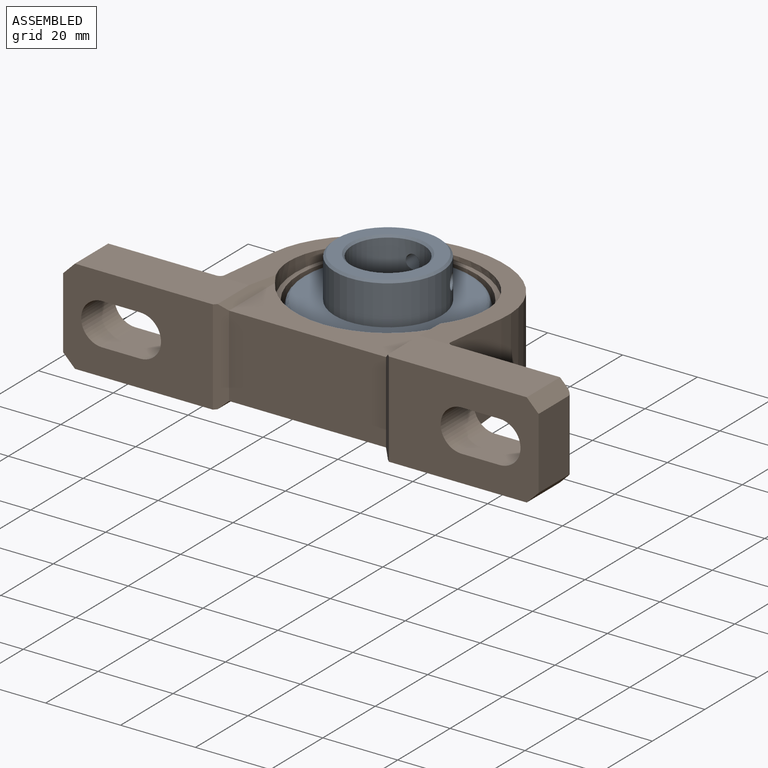
[diagram: assembled view]
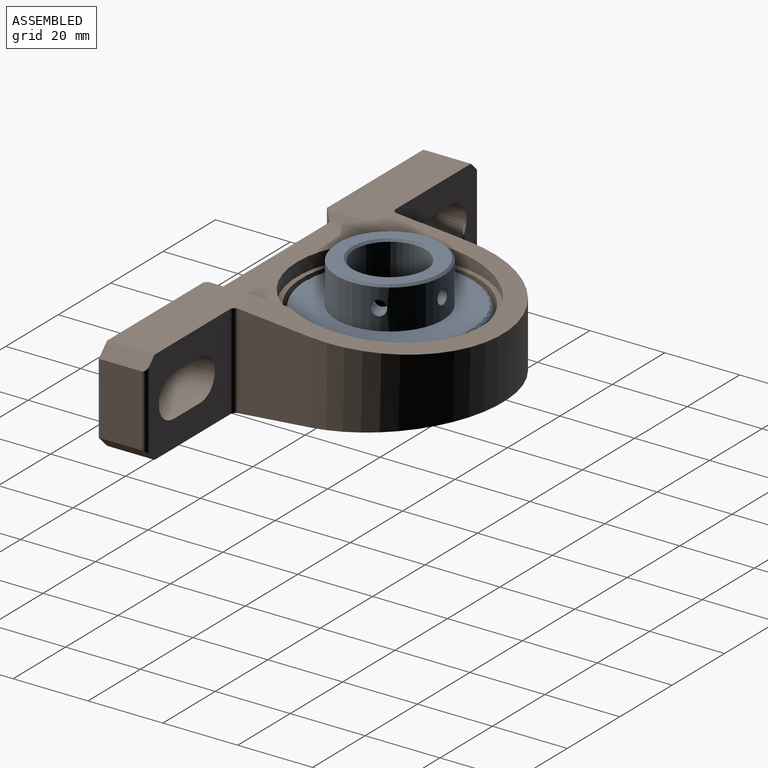
[diagram: assembled view, second angle]
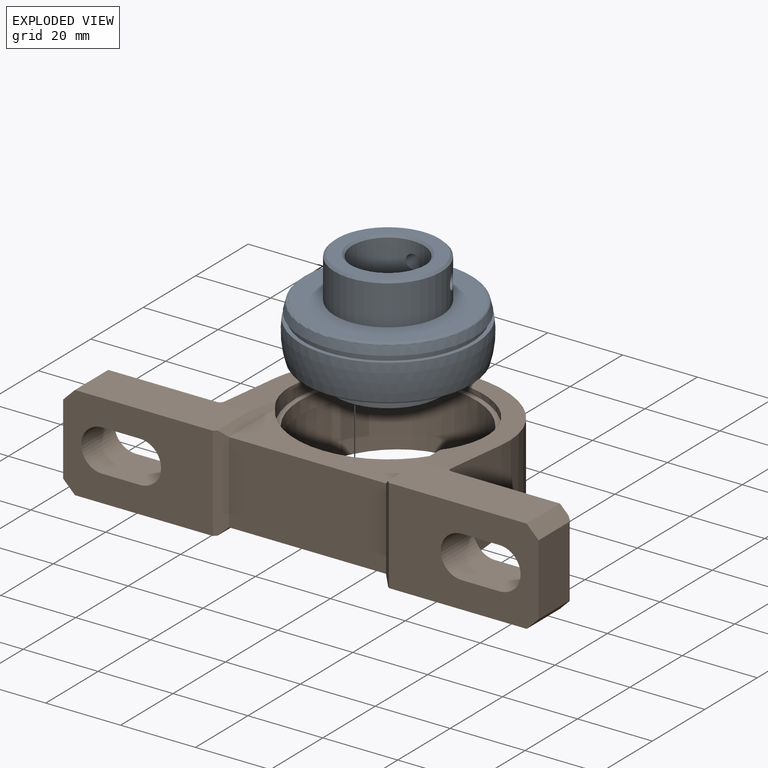
[diagram: exploded view]
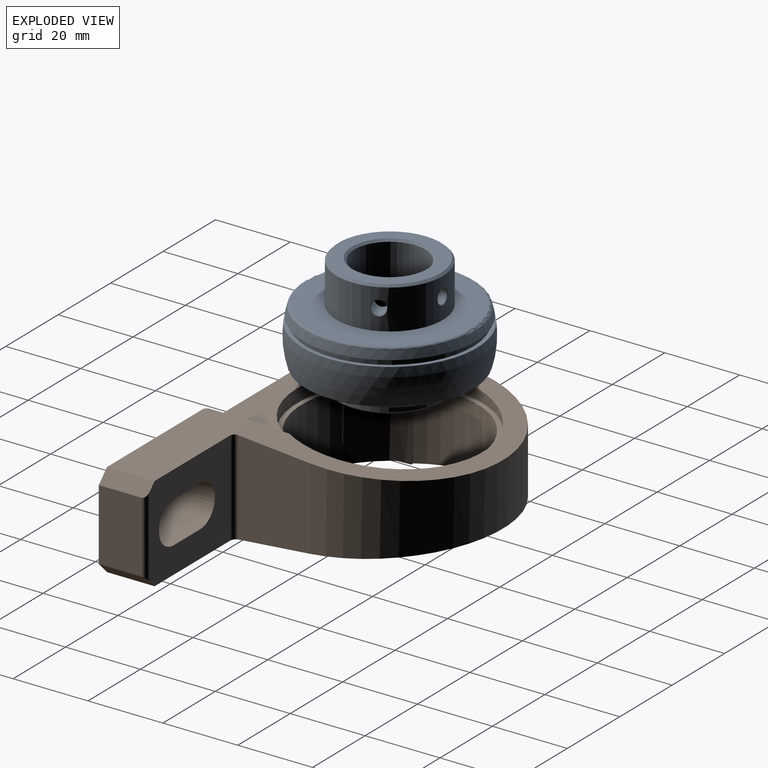
[diagram: exploded view, second angle]
ASSEMBLY  parts=2 mates=2
PART A: 25 faces, bbox 48.8x48.8x31.2 mm
  f0: cylinder r=9.53mm len=30.1mm, axis (0,0,-1), area 1780.2mm2, adj f4,f5,f18,f23
  f1: cylinder r=14.22mm len=28.45mm, axis (0,0,-1), area 923.3mm2, adj f2,f17,f19,f24
  f2: cone r=14.22mm half-angle=45deg, axis (0,0,-1), area 70.5mm2, adj f1,f3
  f3: plane 27.31x27.31mm, normal (0,0,1), area 265.7mm2, adj f2,f4
  f4: cone r=10.09mm half-angle=45deg, axis (0,0,1), area 49.6mm2, adj f0,f3
  f5: cone r=9.53mm half-angle=45deg, axis (0,0,-1), area 49.6mm2, adj f0,f6
  f6: plane 27.31x27.31mm, normal (0,0,-1), area 265.7mm2, adj f5,f7
  f7: cone r=13.66mm half-angle=45deg, axis (0,0,1), area 70.5mm2, adj f6,f8
  f8: cylinder r=14.22mm len=28.45mm, axis (0,0,-1), area 425.9mm2, adj f7,f9
  f9: plane 43.52x43.52mm, normal (0,0,-1), area 851.6mm2, adj f8,f10
  f10: torus R=21.76mm, axis (0,0,-1), area 135.5mm2, adj f9,f11
  f11: sphere r=23.5mm, area 1449.7mm2, adj f10,f12,f21,f22
  f12: plane 46.6x46.6mm, normal (0,0,1), area 153.3mm2, adj f11,f13
  f13: cylinder r=22.23mm len=44.46mm, axis (0,0,-1), area 212.9mm2, adj f12,f14
  f14: plane 46.1x46.1mm, normal (0,0,-1), area 116.8mm2, adj f13,f15
  f15: sphere r=23.5mm, area 332.7mm2, adj f14,f16
  f16: torus R=21.76mm, axis (0,0,-1), area 135.5mm2, adj f15,f17
  f17: plane 43.52x43.52mm, normal (0,0,1), area 851.6mm2, adj f1,f16
  f18: cylinder r=1.84mm len=4.67mm, axis (0,1,0), area 53mm2, adj f0,f19
  f19: cone r=1.84mm half-angle=45deg, axis (0,1,0), area 2.4mm2, adj f1,f18
  f20: plane 0.54x0.54mm, normal (-1,0,0), area 0.2mm2, adj f21
  f21: torus R=0.27mm, axis (1,0,0), area 13.9mm2, adj f11,f20,f22
  f22: cylinder r=1.61mm len=3.21mm, axis (1,0,0), area 0.8mm2, adj f11,f21
  f23: cylinder r=1.84mm len=5.79mm, axis (0.91,0.42,0), area 53mm2, adj f0,f24
  f24: cone r=1.84mm half-angle=45deg, axis (0.91,0.42,0), area 2.4mm2, adj f1,f23
PART B: 51 faces, bbox 127x63.5x25.4 mm
  f0: plane 37.57x12.7mm, normal (0,0,1), area 476.9mm2, adj f13,f14,f21,f22,f25,f48
  f1: plane 37.57x12.7mm, normal (0,0,-1), area 476.9mm2, adj f3,f13,f14,f21,f26,f47
  f2: cylinder r=23.5mm len=47mm, axis (0,0,-1), area 2032.7mm2, adj f3,f24,f37,f38,f39,f41,f42,f44
  f3: plane 63.04x50.85mm, normal (0,0.09,-1), area 850.7mm2, adj f1,f2,f4,f5,f6,f7,f8,f10
  f4: cylinder r=1.27mm len=25.4mm, axis (0,0,-1), area 50.4mm2, adj f3,f5,f20,f22
  f5: plane 25.18x19.3mm, normal (1,0,0), area 453.4mm2, adj f3,f4,f6,f22
  f6: cylinder r=30.23mm len=60.45mm, axis (0,0,-1), area 1750.4mm2, adj f3,f5,f7,f22
  f7: plane 25.18x19.3mm, normal (-1,0,0), area 453.4mm2, adj f3,f6,f8,f22
  f8: cylinder r=1.27mm len=25.4mm, axis (0,0,-1), area 50.4mm2, adj f3,f7,f21,f22
  f9: plane 37.57x12.7mm, normal (0,0,1), area 476.9mm2, adj f16,f17,f20,f22,f27,f49
  f10: plane 37.57x12.7mm, normal (0,0,-1), area 476.9mm2, adj f3,f16,f17,f20,f28,f46
  f11: cylinder r=1.27mm len=21.59mm, axis (0,0,-1), area 39.8mm2, adj f12,f21,f25,f26
  f12: plane 19.05x11.43mm, normal (-1,0,0), area 217.7mm2, adj f11,f13,f25,f26
  f13: plane 40x25.4mm, normal (0,-1,0), area 794.3mm2, adj f0,f1,f12,f14,f25,f26,f33,f34
  f14: plane 25.4x2.54mm, normal (0.71,-0.71,0), area 86.7mm2, adj f0,f1,f13,f15,f47,f48
  f15: plane 41.92x21.81mm, normal (0,-1,0), area 914.4mm2, adj f14,f16,f45,f50
  f16: plane 25.4x2.54mm, normal (-0.71,-0.71,0), area 86.7mm2, adj f9,f10,f15,f17,f46,f49
  f17: plane 40x25.4mm, normal (0,-1,0), area 794.3mm2, adj f9,f10,f16,f18,f27,f28,f29,f30
  f18: plane 19.05x11.43mm, normal (1,0,0), area 217.7mm2, adj f17,f19,f27,f28
  f19: cylinder r=1.27mm len=21.59mm, axis (0,0,-1), area 39.8mm2, adj f18,f20,f27,f28
  f20: plane 30.73x25.4mm, normal (0,1,0), area 565.4mm2, adj f4,f9,f10,f19,f27,f28,f29,f30
  f21: plane 30.73x25.4mm, normal (0,1,0), area 565.4mm2, adj f0,f1,f8,f11,f25,f26,f33,f34
  f22: plane 63.04x50.85mm, normal (0,0.09,1), area 764.4mm2, adj f0,f4,f5,f6,f7,f8,f9,f23
  f23: cylinder r=24.77mm len=49.54mm, axis (0,0,-1), area 457.1mm2, adj f22,f24,f48,f49,f50
  f24: plane 49.54x49.54mm, normal (0,0,1), area 192.6mm2, adj f2,f23
  f25: plane 12.7x3.18mm, normal (-0.71,0,0.71), area 56.5mm2, adj f0,f11,f12,f13,f21
  f26: plane 12.7x3.18mm, normal (-0.71,0,-0.71), area 56.5mm2, adj f1,f11,f12,f13,f21
  f27: plane 12.7x3.18mm, normal (0.71,0,0.71), area 56.5mm2, adj f9,f17,f18,f19,f20
  f28: plane 12.7x3.18mm, normal (0.71,0,-0.71), area 56.5mm2, adj f10,f17,f18,f19,f20
  f29: plane 12.7x10.16mm, normal (0,0,1), area 129mm2, adj f17,f20,f30,f32
  f30: cylinder r=5.59mm len=12.7mm, axis (0,-1,0), area 223mm2, adj f17,f20,f29,f31
  f31: plane 12.7x10.16mm, normal (0,0,-1), area 129mm2, adj f17,f20,f30,f32
  f32: cylinder r=5.59mm len=12.7mm, axis (0,-1,0), area 223mm2, adj f17,f20,f29,f31
  f33: plane 12.7x10.16mm, normal (0,0,1), area 129mm2, adj f13,f21,f34,f36
  f34: cylinder r=5.59mm len=12.7mm, axis (0,-1,0), area 223mm2, adj f13,f21,f33,f35
  f35: plane 12.7x10.16mm, normal (0,0,-1), area 129mm2, adj f13,f21,f34,f36
  f36: cylinder r=5.59mm len=12.7mm, axis (0,-1,0), area 223mm2, adj f13,f21,f33,f35
  f37: plane 19.05x2.97mm, normal (0,0,-1), area 18.7mm2, adj f2,f38,f39,f40
  f38: plane 15.54x1.04mm, normal (0,1,0), area 16.1mm2, adj f2,f3,f37,f40,f46
  f39: plane 13.88x1.04mm, normal (0,-1,0), area 14.4mm2, adj f2,f3,f37,f40
  f40: cylinder r=24.45mm len=19.05mm, axis (0,0,-1), area 287.8mm2, adj f3,f37,f38,f39
  f41: plane 13.88x1.04mm, normal (0,-1,0), area 14.4mm2, adj f2,f3,f42,f43
  f42: plane 19.05x2.97mm, normal (0,0,-1), area 18.7mm2, adj f2,f41,f43,f44
  f43: cylinder r=24.45mm len=19.05mm, axis (0,0,-1), area 287.8mm2, adj f3,f41,f42,f44
  f44: plane 15.54x1.04mm, normal (0,1,0), area 16.1mm2, adj f2,f3,f42,f43,f47
  f45: plane 41.92x20.11mm, normal (0,0,-1), area 457.3mm2, adj f2,f15,f46,f47
  f46: plane 23.02x1.81mm, normal (-0.71,0,-0.71), area 48.1mm2, adj f2,f3,f10,f16,f38,f45
  f47: plane 23.02x1.81mm, normal (0.71,0,-0.71), area 48.1mm2, adj f1,f2,f3,f14,f44,f45
  f48: plane 21.1x1.83mm, normal (0.71,0,0.71), area 44.7mm2, adj f0,f14,f22,f23,f50
  f49: plane 21.1x1.83mm, normal (-0.71,0,0.71), area 44.7mm2, adj f9,f16,f22,f23,f50
  f50: plane 41.92x17.53mm, normal (0,0,1), area 392.8mm2, adj f15,f23,f48,f49
PLACE A t=(-33.43,-18.8,-0.35)mm
PLACE B t=(-33.43,-18.8,-0.35)mm
MATE cylindrical A.f0 <-> B.f2  axis (0,0,-1) through (-33.43,-18.8,2.57)mm
MATE planar A.f0 <-> B.f40  axis (0,0,1) through (-33.43,-18.8,7.01)mm
